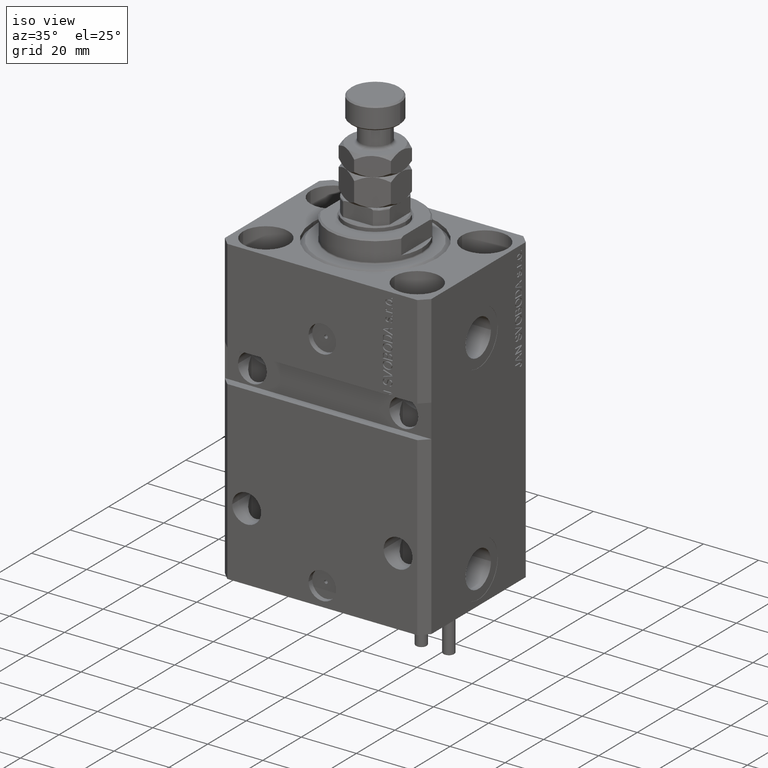
[diagram: clean part render]
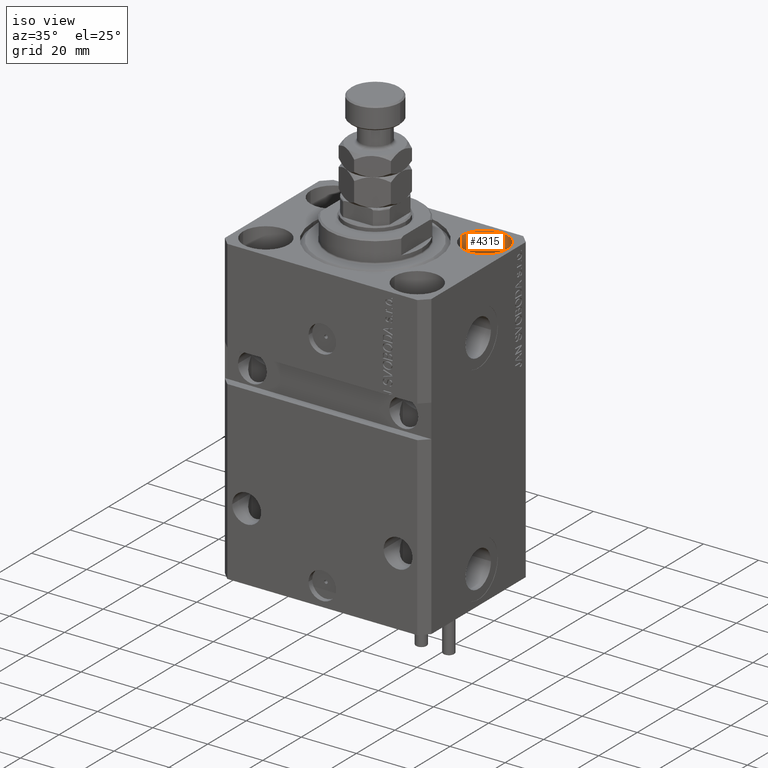
[diagram: same view with one face highlighted and labeled with its STEP entity id]
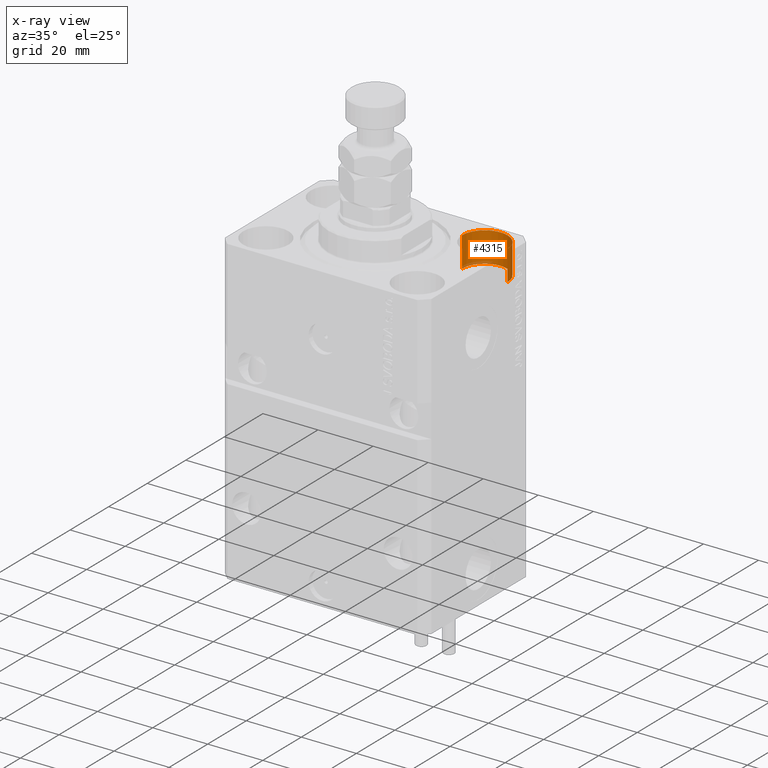
[diagram: x-ray of the same camera — body ghosted, the highlighted face saturated]
A machine part, iso view. The second image highlights one B-rep face of the part: STEP entity #4315.
The next image is the same camera in x-ray: the body ghosted, the highlighted face saturated — about 5% of this face is hidden behind the body in this view.
In plain terms, the highlighted cylindrical surface (edge-blend (fillet) strip) has radius 8.25 mm, axis along (0, 0, 1).
Its self-contained STEP definition (entity closure, byte-faithful):
#1626 = VERTEX_POINT ( 'NONE', #6850 ) ;
#2350 = LINE ( 'NONE', #32890, #50315 ) ;
#4315 = ADVANCED_FACE ( 'NONE', ( #28461 ), #36588, .F. ) ;
#5234 = EDGE_CURVE ( 'NONE', #41698, #19981, #13606, .T. ) ;
#5777 = CARTESIAN_POINT ( 'NONE',  ( 27.49999999999999645, 17.50000000000001066, -11.00000000000000000 ) ) ;
#6016 = EDGE_LOOP ( 'NONE', ( #28152, #35604, #35112, #22426 ) ) ;
#6850 = CARTESIAN_POINT ( 'NONE',  ( 19.25000000000000000, 17.50000000000001066, -11.00000000000000000 ) ) ;
#8423 = DIRECTION ( 'NONE',  ( 0.000000000000000000, 0.000000000000000000, 1.000000000000000000 ) ) ;
#11246 = DIRECTION ( 'NONE',  ( 1.000000000000000000, 0.000000000000000000, 0.000000000000000000 ) ) ;
#12697 = CARTESIAN_POINT ( 'NONE',  ( 35.74999999999999289, 17.50000000000001066, -11.00000000000000000 ) ) ;
#13188 = DIRECTION ( 'NONE',  ( -0.000000000000000000, -0.000000000000000000, 1.000000000000000000 ) ) ;
#13606 = CIRCLE ( 'NONE', #35544, 8.249999999999992895 ) ;
#13655 = DIRECTION ( 'NONE',  ( 1.000000000000000000, 0.000000000000000000, 0.000000000000000000 ) ) ;
#19073 = EDGE_CURVE ( 'NONE', #1626, #19981, #31045, .T. ) ;
#19981 = VERTEX_POINT ( 'NONE', #42269 ) ;
#22426 = ORIENTED_EDGE ( 'NONE', *, *, #5234, .T. ) ;
#23413 = AXIS2_PLACEMENT_3D ( 'NONE', #5777, #32993, #13655 ) ;
#24893 = CARTESIAN_POINT ( 'NONE',  ( 27.49999999999999645, 17.50000000000001066, -11.00000000000000000 ) ) ;
#25844 = CIRCLE ( 'NONE', #23413, 8.249999999999992895 ) ;
#28152 = ORIENTED_EDGE ( 'NONE', *, *, #19073, .F. ) ;
#28461 = FACE_OUTER_BOUND ( 'NONE', #6016, .T. ) ;
#29074 = DIRECTION ( 'NONE',  ( -0.000000000000000000, -0.000000000000000000, 1.000000000000000000 ) ) ;
#31045 = LINE ( 'NONE', #38435, #48132 ) ;
#32776 = DIRECTION ( 'NONE',  ( 1.000000000000000000, 0.000000000000000000, 0.000000000000000000 ) ) ;
#32890 = CARTESIAN_POINT ( 'NONE',  ( 35.74999999999999289, 17.50000000000001066, -11.00000000000000000 ) ) ;
#32993 = DIRECTION ( 'NONE',  ( 0.000000000000000000, 0.000000000000000000, 1.000000000000000000 ) ) ;
#35112 = ORIENTED_EDGE ( 'NONE', *, *, #49523, .T. ) ;
#35142 = CARTESIAN_POINT ( 'NONE',  ( 27.49999999999999645, 17.50000000000001066, 0.000000000000000000 ) ) ;
#35544 = AXIS2_PLACEMENT_3D ( 'NONE', #35142, #8423, #11246 ) ;
#35604 = ORIENTED_EDGE ( 'NONE', *, *, #47022, .F. ) ;
#36588 = CYLINDRICAL_SURFACE ( 'NONE', #39586, 8.249999999999992895 ) ;
#38435 = CARTESIAN_POINT ( 'NONE',  ( 19.25000000000000000, 17.50000000000001066, -11.00000000000000000 ) ) ;
#39586 = AXIS2_PLACEMENT_3D ( 'NONE', #24893, #13188, #32776 ) ;
#40715 = CARTESIAN_POINT ( 'NONE',  ( 35.74999999999999289, 17.50000000000001066, 0.000000000000000000 ) ) ;
#41698 = VERTEX_POINT ( 'NONE', #40715 ) ;
#42269 = CARTESIAN_POINT ( 'NONE',  ( 19.25000000000000000, 17.50000000000001066, 0.000000000000000000 ) ) ;
#47022 = EDGE_CURVE ( 'NONE', #49802, #1626, #25844, .T. ) ;
#48132 = VECTOR ( 'NONE', #49917, 1000.000000000000000 ) ;
#49523 = EDGE_CURVE ( 'NONE', #49802, #41698, #2350, .T. ) ;
#49802 = VERTEX_POINT ( 'NONE', #12697 ) ;
#49917 = DIRECTION ( 'NONE',  ( -0.000000000000000000, -0.000000000000000000, 1.000000000000000000 ) ) ;
#50315 = VECTOR ( 'NONE', #29074, 1000.000000000000000 ) ;